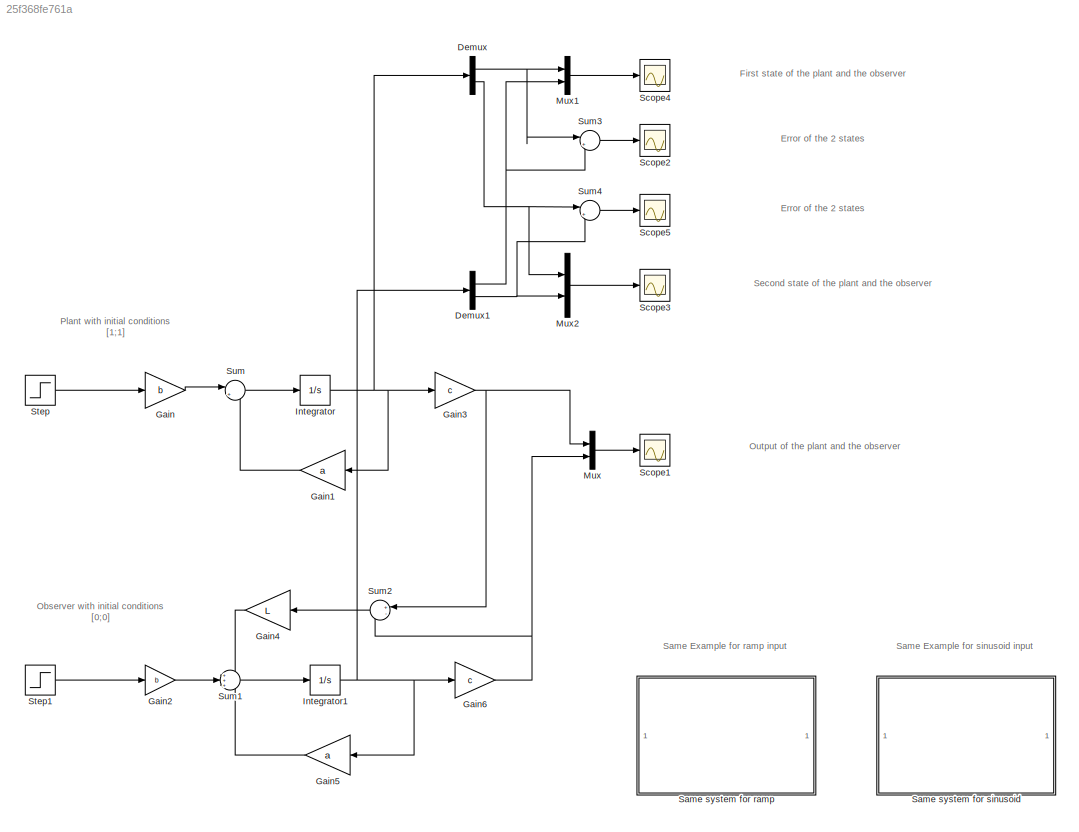
MODEL slx_25f368fe761a
KIND model
BLOCK [Demux] Demux
  DisplayOption = bar
  Outputs = 2
  Ports = [1, 2]
BLOCK [Demux] Demux1
  DisplayOption = bar
  Outputs = 2
  Ports = [1, 2]
BLOCK [Gain] Gain
  Gain = b
  Multiplication = Matrix(K*u)
  OutDataTypeStr = Inherit: Inherit via internal rule
  ParamDataTypeStr = Inherit: Inherit via internal rule
  SaturateOnIntegerOverflow = off
BLOCK [Gain] Gain1
  Gain = a
  Multiplication = Matrix(K*u)
  OutDataTypeStr = Inherit: Inherit via internal rule
  ParamDataTypeStr = Inherit: Inherit via internal rule
  SaturateOnIntegerOverflow = off
BLOCK [Gain] Gain2
  Gain = b
  OutDataTypeStr = Inherit: Inherit via internal rule
  ParamDataTypeStr = Inherit: Inherit via internal rule
  SaturateOnIntegerOverflow = off
BLOCK [Gain] Gain3
  Gain = c
  Multiplication = Matrix(K*u)
  OutDataTypeStr = Inherit: Inherit via internal rule
  ParamDataTypeStr = Inherit: Inherit via internal rule
  SaturateOnIntegerOverflow = off
BLOCK [Gain] Gain4
  Gain = L
  Multiplication = Matrix(K*u)
  OutDataTypeStr = Inherit: Inherit via internal rule
  ParamDataTypeStr = Inherit: Inherit via internal rule
  SaturateOnIntegerOverflow = off
BLOCK [Gain] Gain5
  Gain = a
  Multiplication = Matrix(K*u)
  OutDataTypeStr = Inherit: Inherit via internal rule
  ParamDataTypeStr = Inherit: Inherit via internal rule
  SaturateOnIntegerOverflow = off
BLOCK [Gain] Gain6
  Gain = c
  Multiplication = Matrix(K*u)
  OutDataTypeStr = Inherit: Inherit via internal rule
  ParamDataTypeStr = Inherit: Inherit via internal rule
  SaturateOnIntegerOverflow = off
BLOCK [Integrator] Integrator
  InitialCondition = [1;1]
  Ports = [1, 1]
BLOCK [Integrator] Integrator1
  Ports = [1, 1]
BLOCK [Mux] Mux
  DisplayOption = bar
  Inputs = 2
  Ports = [2, 1]
BLOCK [Mux] Mux1
  DisplayOption = bar
  Inputs = 2
  Ports = [2, 1]
BLOCK [Mux] Mux2
  DisplayOption = bar
  Inputs = 2
  Ports = [2, 1]
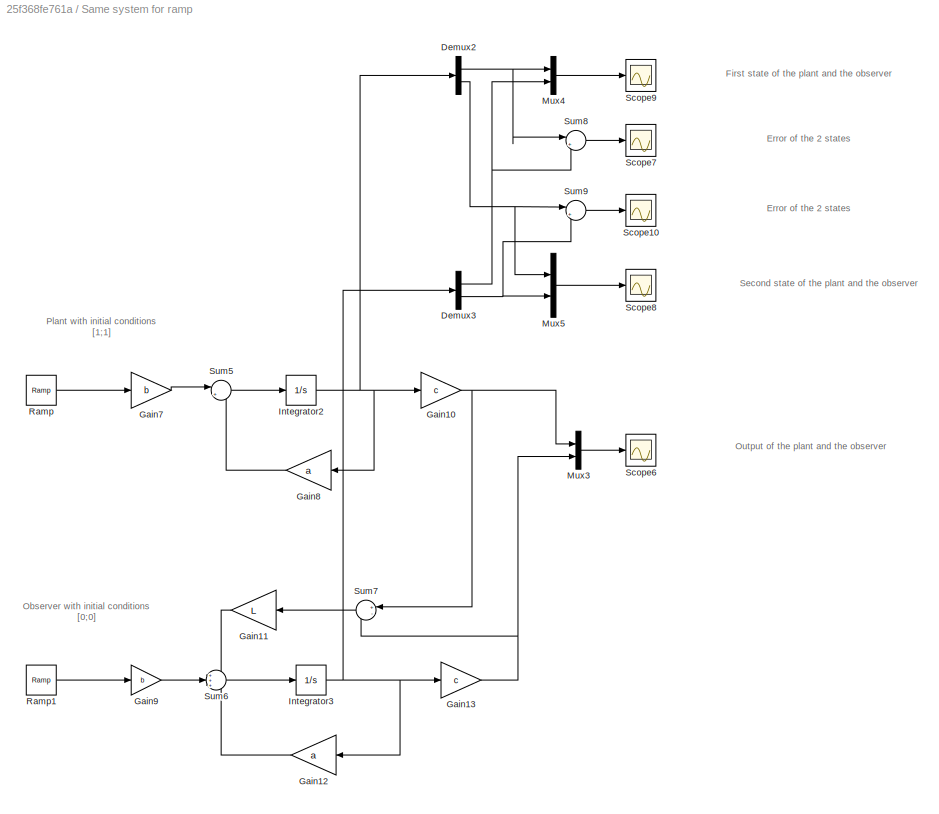
BLOCK [SubSystem] Same system for ramp
  FunctionWithSeparateData = off
  MaskHideContents = off
  MinAlgLoopOccurrences = off
  Opaque = off
  Ports = []
  PropExecContextOutsideSubsystem = off
  RTWSystemCode = Auto
  RequestExecContextInheritance = off
BLOCK [Demux] Same system for ramp/Demux2
  DisplayOption = bar
  Outputs = 2
  Ports = [1, 2]
BLOCK [Demux] Same system for ramp/Demux3
  DisplayOption = bar
  Outputs = 2
  Ports = [1, 2]
BLOCK [Gain] Same system for ramp/Gain10
  Gain = c
  Multiplication = Matrix(K*u)
  OutDataTypeStr = Inherit: Inherit via internal rule
  ParamDataTypeStr = Inherit: Inherit via internal rule
  SaturateOnIntegerOverflow = off
BLOCK [Gain] Same system for ramp/Gain11
  Gain = L
  Multiplication = Matrix(K*u)
  OutDataTypeStr = Inherit: Inherit via internal rule
  ParamDataTypeStr = Inherit: Inherit via internal rule
  SaturateOnIntegerOverflow = off
BLOCK [Gain] Same system for ramp/Gain12
  Gain = a
  Multiplication = Matrix(K*u)
  OutDataTypeStr = Inherit: Inherit via internal rule
  ParamDataTypeStr = Inherit: Inherit via internal rule
  SaturateOnIntegerOverflow = off
BLOCK [Gain] Same system for ramp/Gain13
  Gain = c
  Multiplication = Matrix(K*u)
  OutDataTypeStr = Inherit: Inherit via internal rule
  ParamDataTypeStr = Inherit: Inherit via internal rule
  SaturateOnIntegerOverflow = off
BLOCK [Gain] Same system for ramp/Gain7
  Gain = b
  Multiplication = Matrix(K*u)
  OutDataTypeStr = Inherit: Inherit via internal rule
  ParamDataTypeStr = Inherit: Inherit via internal rule
  SaturateOnIntegerOverflow = off
BLOCK [Gain] Same system for ramp/Gain8
  Gain = a
  Multiplication = Matrix(K*u)
  OutDataTypeStr = Inherit: Inherit via internal rule
  ParamDataTypeStr = Inherit: Inherit via internal rule
  SaturateOnIntegerOverflow = off
BLOCK [Gain] Same system for ramp/Gain9
  Gain = b
  OutDataTypeStr = Inherit: Inherit via internal rule
  ParamDataTypeStr = Inherit: Inherit via internal rule
  SaturateOnIntegerOverflow = off
BLOCK [Integrator] Same system for ramp/Integrator2
  InitialCondition = [1;1]
  Ports = [1, 1]
BLOCK [Integrator] Same system for ramp/Integrator3
  Ports = [1, 1]
BLOCK [Mux] Same system for ramp/Mux3
  DisplayOption = bar
  Inputs = 2
  Ports = [2, 1]
BLOCK [Mux] Same system for ramp/Mux4
  DisplayOption = bar
  Inputs = 2
  Ports = [2, 1]
BLOCK [Mux] Same system for ramp/Mux5
  DisplayOption = bar
  Inputs = 2
  Ports = [2, 1]
BLOCK [Reference] Same system for ramp/Ramp  REF=simulink/Sources/Ramp
  Ports = [0, 1]
  SourceBlock = simulink/Sources/Ramp
  SourceType = Ramp
  VectorParams1D = on
  X0 = 0
  slope = 1
  start = 0
BLOCK [Reference] Same system for ramp/Ramp1  REF=simulink/Sources/Ramp
  Ports = [0, 1]
  SourceBlock = simulink/Sources/Ramp
  SourceType = Ramp
  VectorParams1D = on
  X0 = 0
  slope = 1
  start = 0
BLOCK [Scope] Same system for ramp/Scope10
  DataFormat = StructureWithTime
  Floating = off
  NumInputPorts = 1
  Ports = [1]
  SampleTime = 0
  SaveName = ScopeData5
  ShowLegends = off
BLOCK [Scope] Same system for ramp/Scope6
  DataFormat = StructureWithTime
  Floating = off
  NumInputPorts = 1
  Ports = [1]
  SampleTime = 0
  SaveName = ScopeData6
  ShowLegends = off
BLOCK [Scope] Same system for ramp/Scope7
  DataFormat = StructureWithTime
  Floating = off
  NumInputPorts = 1
  Ports = [1]
  SampleTime = 0
  SaveName = ScopeData7
  ShowLegends = off
BLOCK [Scope] Same system for ramp/Scope8
  DataFormat = StructureWithTime
  Floating = off
  NumInputPorts = 1
  Ports = [1]
  SampleTime = 0
  SaveName = ScopeData8
  ShowLegends = off
BLOCK [Scope] Same system for ramp/Scope9
  DataFormat = StructureWithTime
  Floating = off
  NumInputPorts = 1
  Ports = [1]
  SampleTime = 0
  SaveName = ScopeData9
  ShowLegends = off
  ZoomMode = xonly
BLOCK [Sum] Same system for ramp/Sum5
  IconShape = round
  InputSameDT = off
  Inputs = |++
  OutDataTypeStr = Inherit: Inherit via internal rule
  Ports = [2, 1]
  SaturateOnIntegerOverflow = off
BLOCK [Sum] Same system for ramp/Sum6
  IconShape = round
  InputSameDT = off
  Inputs = +++
  OutDataTypeStr = Inherit: Inherit via internal rule
  Ports = [3, 1]
  SaturateOnIntegerOverflow = off
BLOCK [Sum] Same system for ramp/Sum7
  IconShape = round
  InputSameDT = off
  Inputs = +-
  OutDataTypeStr = Inherit: Inherit via internal rule
  Ports = [2, 1]
  SaturateOnIntegerOverflow = off
BLOCK [Sum] Same system for ramp/Sum8
  IconShape = round
  InputSameDT = off
  Inputs = |+-
  OutDataTypeStr = Inherit: Inherit via internal rule
  Ports = [2, 1]
  SaturateOnIntegerOverflow = off
BLOCK [Sum] Same system for ramp/Sum9
  IconShape = round
  InputSameDT = off
  Inputs = |+-
  OutDataTypeStr = Inherit: Inherit via internal rule
  Ports = [2, 1]
  SaturateOnIntegerOverflow = off
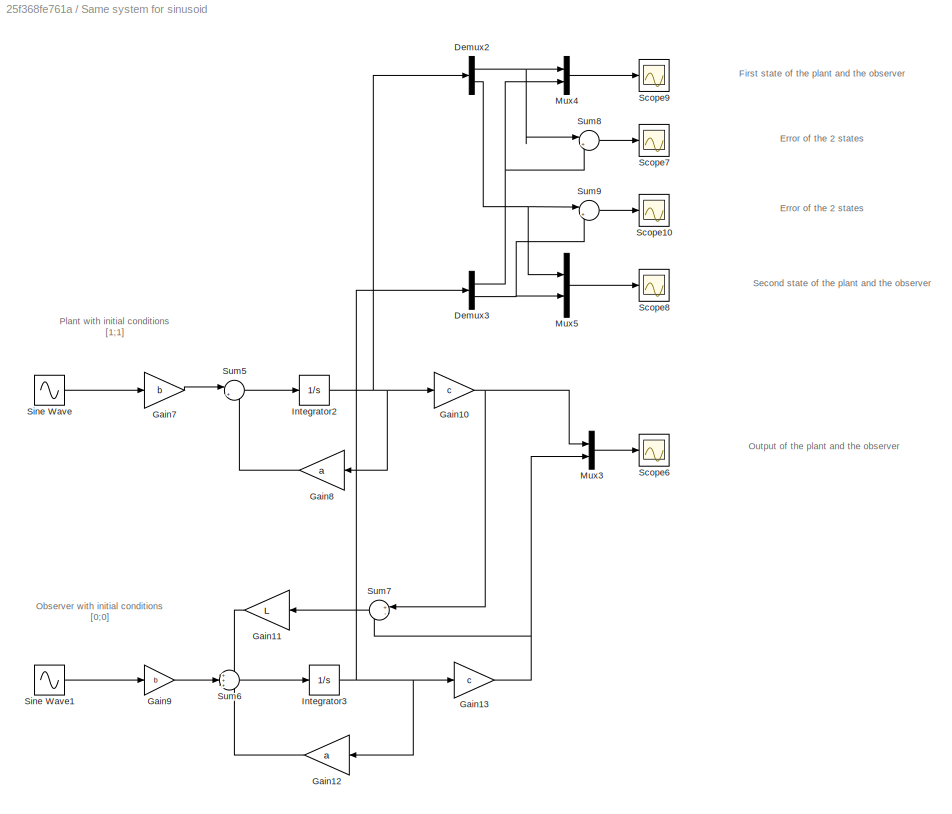
BLOCK [SubSystem] Same system for sinusoid
  FunctionWithSeparateData = off
  MaskHideContents = off
  MinAlgLoopOccurrences = off
  Opaque = off
  Ports = []
  PropExecContextOutsideSubsystem = off
  RTWSystemCode = Auto
  RequestExecContextInheritance = off
BLOCK [Demux] Same system for sinusoid/Demux2
  DisplayOption = bar
  Outputs = 2
  Ports = [1, 2]
BLOCK [Demux] Same system for sinusoid/Demux3
  DisplayOption = bar
  Outputs = 2
  Ports = [1, 2]
BLOCK [Gain] Same system for sinusoid/Gain10
  Gain = c
  Multiplication = Matrix(K*u)
  OutDataTypeStr = Inherit: Inherit via internal rule
  ParamDataTypeStr = Inherit: Inherit via internal rule
  SaturateOnIntegerOverflow = off
BLOCK [Gain] Same system for sinusoid/Gain11
  Gain = L
  Multiplication = Matrix(K*u)
  OutDataTypeStr = Inherit: Inherit via internal rule
  ParamDataTypeStr = Inherit: Inherit via internal rule
  SaturateOnIntegerOverflow = off
BLOCK [Gain] Same system for sinusoid/Gain12
  Gain = a
  Multiplication = Matrix(K*u)
  OutDataTypeStr = Inherit: Inherit via internal rule
  ParamDataTypeStr = Inherit: Inherit via internal rule
  SaturateOnIntegerOverflow = off
BLOCK [Gain] Same system for sinusoid/Gain13
  Gain = c
  Multiplication = Matrix(K*u)
  OutDataTypeStr = Inherit: Inherit via internal rule
  ParamDataTypeStr = Inherit: Inherit via internal rule
  SaturateOnIntegerOverflow = off
BLOCK [Gain] Same system for sinusoid/Gain7
  Gain = b
  Multiplication = Matrix(K*u)
  OutDataTypeStr = Inherit: Inherit via internal rule
  ParamDataTypeStr = Inherit: Inherit via internal rule
  SaturateOnIntegerOverflow = off
BLOCK [Gain] Same system for sinusoid/Gain8
  Gain = a
  Multiplication = Matrix(K*u)
  OutDataTypeStr = Inherit: Inherit via internal rule
  ParamDataTypeStr = Inherit: Inherit via internal rule
  SaturateOnIntegerOverflow = off
BLOCK [Gain] Same system for sinusoid/Gain9
  Gain = b
  OutDataTypeStr = Inherit: Inherit via internal rule
  ParamDataTypeStr = Inherit: Inherit via internal rule
  SaturateOnIntegerOverflow = off
BLOCK [Integrator] Same system for sinusoid/Integrator2
  InitialCondition = [1;1]
  Ports = [1, 1]
BLOCK [Integrator] Same system for sinusoid/Integrator3
  Ports = [1, 1]
BLOCK [Mux] Same system for sinusoid/Mux3
  DisplayOption = bar
  Inputs = 2
  Ports = [2, 1]
BLOCK [Mux] Same system for sinusoid/Mux4
  DisplayOption = bar
  Inputs = 2
  Ports = [2, 1]
BLOCK [Mux] Same system for sinusoid/Mux5
  DisplayOption = bar
  Inputs = 2
  Ports = [2, 1]
BLOCK [Scope] Same system for sinusoid/Scope10
  DataFormat = StructureWithTime
  Floating = off
  NumInputPorts = 1
  Ports = [1]
  SampleTime = 0
  SaveName = ScopeData5
  ShowLegends = off
BLOCK [Scope] Same system for sinusoid/Scope6
  DataFormat = StructureWithTime
  Floating = off
  NumInputPorts = 1
  Ports = [1]
  SampleTime = 0
  SaveName = ScopeData6
  ShowLegends = off
BLOCK [Scope] Same system for sinusoid/Scope7
  DataFormat = StructureWithTime
  Floating = off
  NumInputPorts = 1
  Ports = [1]
  SampleTime = 0
  SaveName = ScopeData7
  ShowLegends = off
BLOCK [Scope] Same system for sinusoid/Scope8
  DataFormat = StructureWithTime
  Floating = off
  NumInputPorts = 1
  Ports = [1]
  SampleTime = 0
  SaveName = ScopeData8
  ShowLegends = off
BLOCK [Scope] Same system for sinusoid/Scope9
  DataFormat = StructureWithTime
  Floating = off
  NumInputPorts = 1
  Ports = [1]
  SampleTime = 0
  SaveName = ScopeData9
  ShowLegends = off
  ZoomMode = xonly
BLOCK [Sin] Same system for sinusoid/Sine Wave
  Amplitude = 3
  Ports = [0, 1]
  SampleTime = 0
BLOCK [Sin] Same system for sinusoid/Sine Wave1
  Amplitude = 3
  Ports = [0, 1]
  SampleTime = 0
BLOCK [Sum] Same system for sinusoid/Sum5
  IconShape = round
  InputSameDT = off
  Inputs = |++
  OutDataTypeStr = Inherit: Inherit via internal rule
  Ports = [2, 1]
  SaturateOnIntegerOverflow = off
BLOCK [Sum] Same system for sinusoid/Sum6
  IconShape = round
  InputSameDT = off
  Inputs = +++
  OutDataTypeStr = Inherit: Inherit via internal rule
  Ports = [3, 1]
  SaturateOnIntegerOverflow = off
BLOCK [Sum] Same system for sinusoid/Sum7
  IconShape = round
  InputSameDT = off
  Inputs = +-
  OutDataTypeStr = Inherit: Inherit via internal rule
  Ports = [2, 1]
  SaturateOnIntegerOverflow = off
BLOCK [Sum] Same system for sinusoid/Sum8
  IconShape = round
  InputSameDT = off
  Inputs = |+-
  OutDataTypeStr = Inherit: Inherit via internal rule
  Ports = [2, 1]
  SaturateOnIntegerOverflow = off
BLOCK [Sum] Same system for sinusoid/Sum9
  IconShape = round
  InputSameDT = off
  Inputs = |+-
  OutDataTypeStr = Inherit: Inherit via internal rule
  Ports = [2, 1]
  SaturateOnIntegerOverflow = off
BLOCK [Scope] Scope1
  DataFormat = StructureWithTime
  Floating = off
  NumInputPorts = 1
  Ports = [1]
  SampleTime = 0
  SaveName = ScopeData1
  ShowLegends = off
BLOCK [Scope] Scope2
  DataFormat = StructureWithTime
  Floating = off
  NumInputPorts = 1
  Ports = [1]
  SampleTime = 0
  SaveName = ScopeData2
  ShowLegends = off
BLOCK [Scope] Scope3
  DataFormat = StructureWithTime
  Floating = off
  NumInputPorts = 1
  Ports = [1]
  SampleTime = 0
  ShowLegends = off
BLOCK [Scope] Scope4
  DataFormat = StructureWithTime
  Floating = off
  NumInputPorts = 1
  Ports = [1]
  SampleTime = 0
  SaveName = ScopeData3
  ShowLegends = off
  ZoomMode = xonly
BLOCK [Scope] Scope5
  DataFormat = StructureWithTime
  Floating = off
  NumInputPorts = 1
  Ports = [1]
  SampleTime = 0
  SaveName = ScopeData4
  ShowLegends = off
BLOCK [Step] Step
  SampleTime = 0
  Time = 0
BLOCK [Step] Step1
  SampleTime = 0
  Time = 0
BLOCK [Sum] Sum
  IconShape = round
  InputSameDT = off
  Inputs = |++
  OutDataTypeStr = Inherit: Inherit via internal rule
  Ports = [2, 1]
  SaturateOnIntegerOverflow = off
BLOCK [Sum] Sum1
  IconShape = round
  InputSameDT = off
  Inputs = +++
  OutDataTypeStr = Inherit: Inherit via internal rule
  Ports = [3, 1]
  SaturateOnIntegerOverflow = off
BLOCK [Sum] Sum2
  IconShape = round
  InputSameDT = off
  Inputs = +-
  OutDataTypeStr = Inherit: Inherit via internal rule
  Ports = [2, 1]
  SaturateOnIntegerOverflow = off
BLOCK [Sum] Sum3
  IconShape = round
  InputSameDT = off
  Inputs = |+-
  OutDataTypeStr = Inherit: Inherit via internal rule
  Ports = [2, 1]
  SaturateOnIntegerOverflow = off
BLOCK [Sum] Sum4
  IconShape = round
  InputSameDT = off
  Inputs = |+-
  OutDataTypeStr = Inherit: Inherit via internal rule
  Ports = [2, 1]
  SaturateOnIntegerOverflow = off
ANNOTATION (root): Error of the 2 states
ANNOTATION (root): First state of the plant and the observer
ANNOTATION (root): Observer with initial conditions [0;0]
ANNOTATION (root): Output of the plant and the observer
ANNOTATION (root): Plant with initial conditions [1;1]
ANNOTATION (root): Same Example for ramp input
ANNOTATION (root): Same Example for sinusoid input
ANNOTATION (root): Second state of the plant and the observer
ANNOTATION Same system for ramp: Error of the 2 states
ANNOTATION Same system for ramp: First state of the plant and the observer
ANNOTATION Same system for ramp: Observer with initial conditions [0;0]
ANNOTATION Same system for ramp: Output of the plant and the observer
ANNOTATION Same system for ramp: Plant with initial conditions [1;1]
ANNOTATION Same system for ramp: Second state of the plant and the observer
ANNOTATION Same system for sinusoid: Error of the 2 states
ANNOTATION Same system for sinusoid: First state of the plant and the observer
ANNOTATION Same system for sinusoid: Observer with initial conditions [0;0]
ANNOTATION Same system for sinusoid: Output of the plant and the observer
ANNOTATION Same system for sinusoid: Plant with initial conditions [1;1]
ANNOTATION Same system for sinusoid: Second state of the plant and the observer
NET Demux1:1 -> Mux1:2, Sum3:2
NET Demux1:2 -> Mux2:2, Sum4:2
NET Demux:1 -> Mux1:1, Sum3:1
NET Demux:2 -> Mux2:1, Sum4:1
LINE Gain1:1 -> Sum:2
LINE Gain2:1 -> Sum1:2
NET Gain3:1 -> Mux:1, Sum2:1
LINE Gain4:1 -> Sum1:1
LINE Gain5:1 -> Sum1:3
NET Gain6:1 -> Mux:2, Sum2:2
LINE Gain:1 -> Sum:1
NET Integrator1:1 -> Demux1:1, Gain5:1, Gain6:1
NET Integrator:1 -> Demux:1, Gain1:1, Gain3:1
LINE Mux1:1 -> Scope4:1
LINE Mux2:1 -> Scope3:1
LINE Mux:1 -> Scope1:1
NET Same system for ramp/Demux2:1 -> Same system for ramp/Mux4:1, Same system for ramp/Sum8:1
NET Same system for ramp/Demux2:2 -> Same system for ramp/Mux5:1, Same system for ramp/Sum9:1
NET Same system for ramp/Demux3:1 -> Same system for ramp/Mux4:2, Same system for ramp/Sum8:2
NET Same system for ramp/Demux3:2 -> Same system for ramp/Mux5:2, Same system for ramp/Sum9:2
NET Same system for ramp/Gain10:1 -> Same system for ramp/Mux3:1, Same system for ramp/Sum7:1
LINE Same system for ramp/Gain11:1 -> Same system for ramp/Sum6:1
LINE Same system for ramp/Gain12:1 -> Same system for ramp/Sum6:3
NET Same system for ramp/Gain13:1 -> Same system for ramp/Mux3:2, Same system for ramp/Sum7:2
LINE Same system for ramp/Gain7:1 -> Same system for ramp/Sum5:1
LINE Same system for ramp/Gain8:1 -> Same system for ramp/Sum5:2
LINE Same system for ramp/Gain9:1 -> Same system for ramp/Sum6:2
NET Same system for ramp/Integrator2:1 -> Same system for ramp/Demux2:1, Same system for ramp/Gain10:1, Same system for ramp/Gain8:1
NET Same system for ramp/Integrator3:1 -> Same system for ramp/Demux3:1, Same system for ramp/Gain12:1, Same system for ramp/Gain13:1
LINE Same system for ramp/Mux3:1 -> Same system for ramp/Scope6:1
LINE Same system for ramp/Mux4:1 -> Same system for ramp/Scope9:1
LINE Same system for ramp/Mux5:1 -> Same system for ramp/Scope8:1
LINE Same system for ramp/Ramp1:1 -> Same system for ramp/Gain9:1
LINE Same system for ramp/Ramp:1 -> Same system for ramp/Gain7:1
LINE Same system for ramp/Sum5:1 -> Same system for ramp/Integrator2:1
LINE Same system for ramp/Sum6:1 -> Same system for ramp/Integrator3:1
LINE Same system for ramp/Sum7:1 -> Same system for ramp/Gain11:1
LINE Same system for ramp/Sum8:1 -> Same system for ramp/Scope7:1
LINE Same system for ramp/Sum9:1 -> Same system for ramp/Scope10:1
NET Same system for sinusoid/Demux2:1 -> Same system for sinusoid/Mux4:1, Same system for sinusoid/Sum8:1
NET Same system for sinusoid/Demux2:2 -> Same system for sinusoid/Mux5:1, Same system for sinusoid/Sum9:1
NET Same system for sinusoid/Demux3:1 -> Same system for sinusoid/Mux4:2, Same system for sinusoid/Sum8:2
NET Same system for sinusoid/Demux3:2 -> Same system for sinusoid/Mux5:2, Same system for sinusoid/Sum9:2
NET Same system for sinusoid/Gain10:1 -> Same system for sinusoid/Mux3:1, Same system for sinusoid/Sum7:1
LINE Same system for sinusoid/Gain11:1 -> Same system for sinusoid/Sum6:1
LINE Same system for sinusoid/Gain12:1 -> Same system for sinusoid/Sum6:3
NET Same system for sinusoid/Gain13:1 -> Same system for sinusoid/Mux3:2, Same system for sinusoid/Sum7:2
LINE Same system for sinusoid/Gain7:1 -> Same system for sinusoid/Sum5:1
LINE Same system for sinusoid/Gain8:1 -> Same system for sinusoid/Sum5:2
LINE Same system for sinusoid/Gain9:1 -> Same system for sinusoid/Sum6:2
NET Same system for sinusoid/Integrator2:1 -> Same system for sinusoid/Demux2:1, Same system for sinusoid/Gain10:1, Same system for sinusoid/Gain8:1
NET Same system for sinusoid/Integrator3:1 -> Same system for sinusoid/Demux3:1, Same system for sinusoid/Gain12:1, Same system for sinusoid/Gain13:1
LINE Same system for sinusoid/Mux3:1 -> Same system for sinusoid/Scope6:1
LINE Same system for sinusoid/Mux4:1 -> Same system for sinusoid/Scope9:1
LINE Same system for sinusoid/Mux5:1 -> Same system for sinusoid/Scope8:1
LINE Same system for sinusoid/Sine Wave1:1 -> Same system for sinusoid/Gain9:1
LINE Same system for sinusoid/Sine Wave:1 -> Same system for sinusoid/Gain7:1
LINE Same system for sinusoid/Sum5:1 -> Same system for sinusoid/Integrator2:1
LINE Same system for sinusoid/Sum6:1 -> Same system for sinusoid/Integrator3:1
LINE Same system for sinusoid/Sum7:1 -> Same system for sinusoid/Gain11:1
LINE Same system for sinusoid/Sum8:1 -> Same system for sinusoid/Scope7:1
LINE Same system for sinusoid/Sum9:1 -> Same system for sinusoid/Scope10:1
LINE Step1:1 -> Gain2:1
LINE Step:1 -> Gain:1
LINE Sum1:1 -> Integrator1:1
LINE Sum2:1 -> Gain4:1
LINE Sum3:1 -> Scope2:1
LINE Sum4:1 -> Scope5:1
LINE Sum:1 -> Integrator:1
note: NET lines group one-source signal fan-out (src -> all destinations, sorted); 1:1 wires keep LINE
